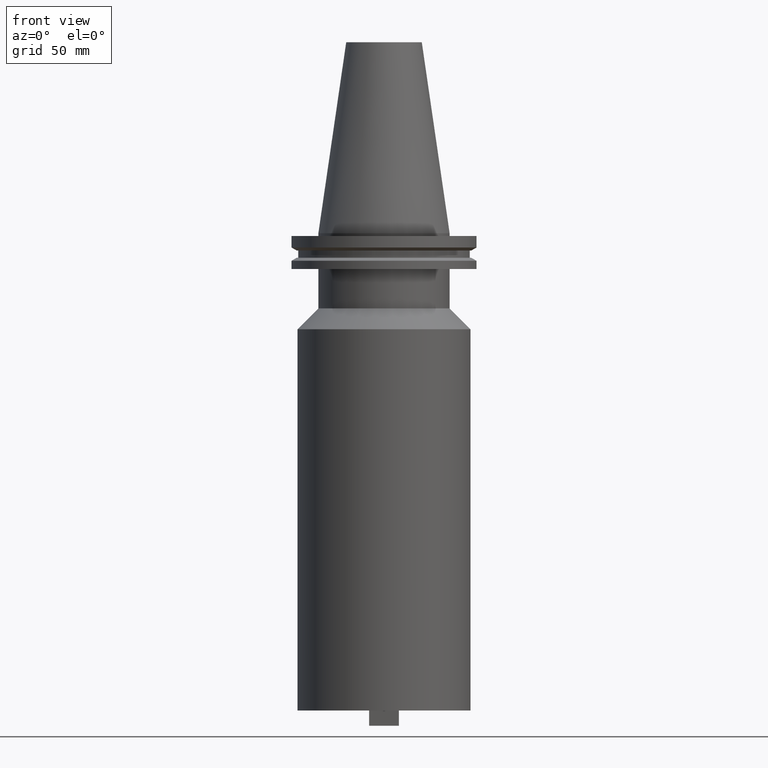
[diagram: clean part render]
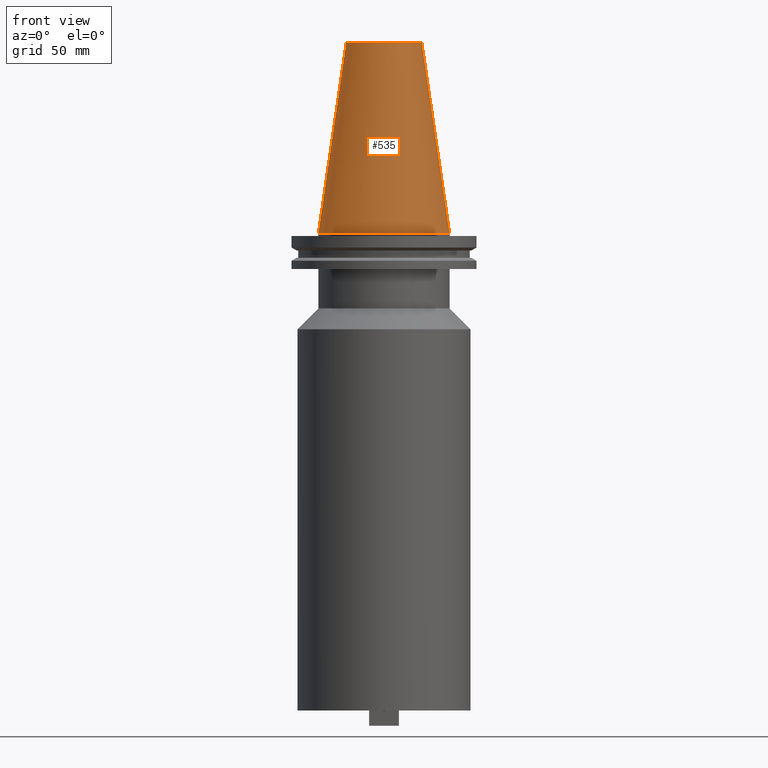
[diagram: same view with one face highlighted and labeled with its STEP entity id]
A machine part, front view. The second image highlights one B-rep face of the part: STEP entity #535.
In plain terms, the highlighted conical surface has half-angle 8.297 deg.
Its self-contained STEP definition (entity closure, byte-faithful):
#92 = CIRCLE ( 'NONE', #676, 34.92499999999999005 ) ;
#126 = LINE ( 'NONE', #627, #747 ) ;
#133 = CARTESIAN_POINT ( 'NONE',  ( -34.92499999999999005, 0.000000000000000000, 0.000000000000000000 ) ) ;
#142 = EDGE_CURVE ( 'NONE', #803, #145, #126, .T. ) ;
#145 = VERTEX_POINT ( 'NONE', #133 ) ;
#169 = EDGE_LOOP ( 'NONE', ( #553, #724, #1027, #942 ) ) ;
#194 = CARTESIAN_POINT ( 'NONE',  ( 34.92499999999999005, 4.277078946022130098E-15, 0.000000000000000000 ) ) ;
#273 = EDGE_CURVE ( 'NONE', #1017, #392, #540, .T. ) ;
#295 = DIRECTION ( 'NONE',  ( -0.000000000000000000, -0.000000000000000000, 1.000000000000000000 ) ) ;
#322 = CONICAL_SURFACE ( 'NONE', #929, 34.92499999999999005, 0.1448138465474119452 ) ;
#354 = CARTESIAN_POINT ( 'NONE',  ( 20.10819343178871321, 3.369811209154858606E-15, 101.5999999999999801 ) ) ;
#384 = DIRECTION ( 'NONE',  ( -0.1443082272672999988, 0.000000000000000000, -0.9895327864921755756 ) ) ;
#392 = VERTEX_POINT ( 'NONE', #419 ) ;
#394 = CIRCLE ( 'NONE', #677, 20.10819343178871321 ) ;
#419 = CARTESIAN_POINT ( 'NONE',  ( 34.92499999999999005, 4.277078946022130098E-15, 0.000000000000000000 ) ) ;
#452 = EDGE_CURVE ( 'NONE', #145, #392, #92, .T. ) ;
#475 = DIRECTION ( 'NONE',  ( 0.000000000000000000, 0.000000000000000000, -1.000000000000000000 ) ) ;
#535 = ADVANCED_FACE ( 'NONE', ( #637 ), #322, .T. ) ;
#540 = LINE ( 'NONE', #194, #597 ) ;
#550 = CARTESIAN_POINT ( 'NONE',  ( -20.10819343178871321, 0.000000000000000000, 101.5999999999999801 ) ) ;
#553 = ORIENTED_EDGE ( 'NONE', *, *, #273, .F. ) ;
#597 = VECTOR ( 'NONE', #797, 999.9999999999998863 ) ;
#618 = DIRECTION ( 'NONE',  ( 1.000000000000000000, 0.000000000000000000, 0.000000000000000000 ) ) ;
#627 = CARTESIAN_POINT ( 'NONE',  ( -34.92499999999999005, 0.000000000000000000, 0.000000000000000000 ) ) ;
#637 = FACE_OUTER_BOUND ( 'NONE', #169, .T. ) ;
#668 = DIRECTION ( 'NONE',  ( -1.000000000000000000, 0.000000000000000000, 0.000000000000000000 ) ) ;
#676 = AXIS2_PLACEMENT_3D ( 'NONE', #720, #295, #618 ) ;
#677 = AXIS2_PLACEMENT_3D ( 'NONE', #801, #702, #795 ) ;
#702 = DIRECTION ( 'NONE',  ( -0.000000000000000000, -0.000000000000000000, 1.000000000000000000 ) ) ;
#720 = CARTESIAN_POINT ( 'NONE',  ( 0.000000000000000000, 0.000000000000000000, 0.000000000000000000 ) ) ;
#724 = ORIENTED_EDGE ( 'NONE', *, *, #921, .F. ) ;
#747 = VECTOR ( 'NONE', #384, 999.9999999999998863 ) ;
#795 = DIRECTION ( 'NONE',  ( 1.000000000000000000, 0.000000000000000000, 0.000000000000000000 ) ) ;
#797 = DIRECTION ( 'NONE',  ( 0.1443082272672999988, 1.767266086135277066E-17, -0.9895327864921755756 ) ) ;
#801 = CARTESIAN_POINT ( 'NONE',  ( 0.000000000000000000, 0.000000000000000000, 101.5999999999999801 ) ) ;
#803 = VERTEX_POINT ( 'NONE', #550 ) ;
#806 = CARTESIAN_POINT ( 'NONE',  ( 0.000000000000000000, 0.000000000000000000, 0.000000000000000000 ) ) ;
#921 = EDGE_CURVE ( 'NONE', #803, #1017, #394, .T. ) ;
#929 = AXIS2_PLACEMENT_3D ( 'NONE', #806, #475, #668 ) ;
#942 = ORIENTED_EDGE ( 'NONE', *, *, #452, .T. ) ;
#1017 = VERTEX_POINT ( 'NONE', #354 ) ;
#1027 = ORIENTED_EDGE ( 'NONE', *, *, #142, .T. ) ;